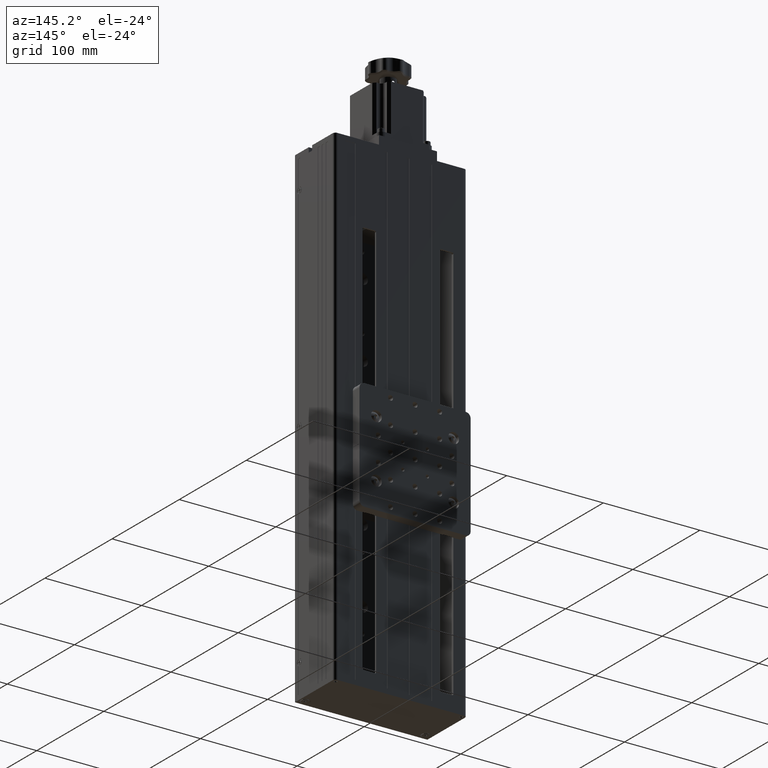
[diagram: clean part render]
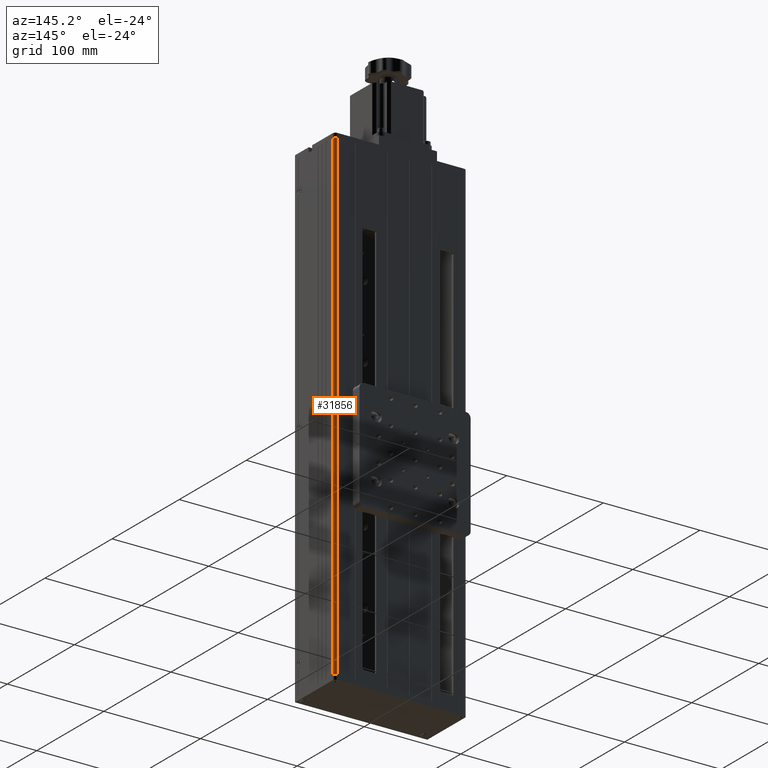
[diagram: same view with one face highlighted and labeled with its STEP entity id]
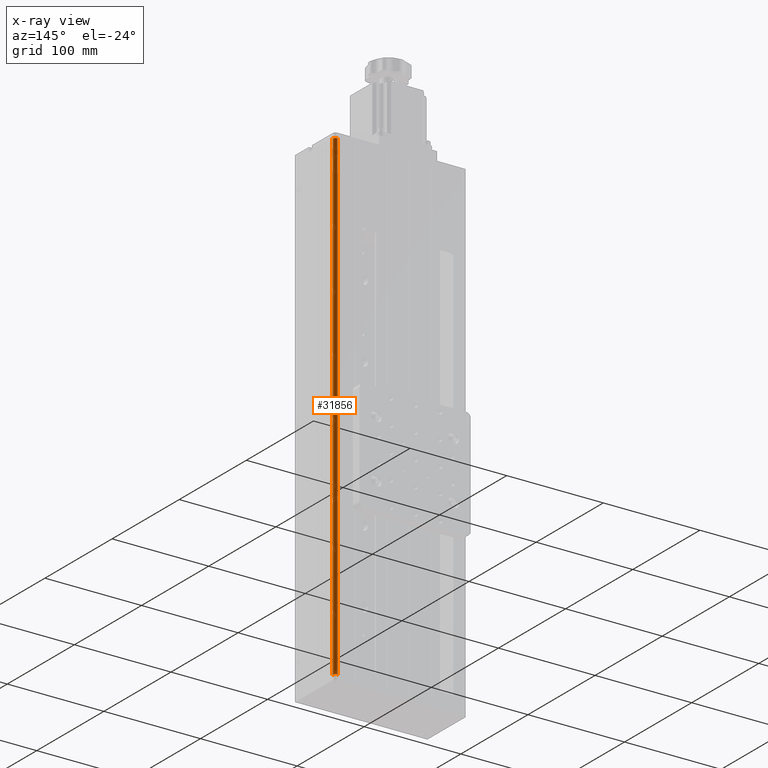
[diagram: x-ray of the same camera — body ghosted, the highlighted face saturated]
A machine part, auxiliary view. The second image highlights one B-rep face of the part: STEP entity #31856.
The next image is the same camera in x-ray: the body ghosted, the highlighted face saturated — about 0% of this face is hidden behind the body in this view.
In plain terms, the highlighted cylindrical surface (edge-blend (fillet) strip) has radius 3 mm, axis along (-0, -0, -1).
Its self-contained STEP definition (entity closure, byte-faithful):
#1558 = VERTEX_POINT ( 'NONE', #4806 ) ;
#4066 = CYLINDRICAL_SURFACE ( 'NONE', #6900, 3.000000000000002700 ) ;
#4219 = AXIS2_PLACEMENT_3D ( 'NONE', #28100, #8530, #31322 ) ;
#4436 = DIRECTION ( 'NONE',  ( -0.0000000000000000000, -0.0000000000000000000, -1.000000000000000000 ) ) ;
#4745 = VERTEX_POINT ( 'NONE', #20066 ) ;
#4806 = CARTESIAN_POINT ( 'NONE',  ( 62.38919164396001800, 50.08234937935211000, 249.5000000000000000 ) ) ;
#6797 = EDGE_CURVE ( 'NONE', #1558, #19803, #9597, .T. ) ;
#6807 = DIRECTION ( 'NONE',  ( 0.0000000000000000000, 0.0000000000000000000, 1.000000000000000000 ) ) ;
#6900 = AXIS2_PLACEMENT_3D ( 'NONE', #26088, #29232, #26219 ) ;
#8530 = DIRECTION ( 'NONE',  ( 0.0000000000000000000, 0.0000000000000000000, 1.000000000000000000 ) ) ;
#9261 = DIRECTION ( 'NONE',  ( -0.0000000000000000000, -0.0000000000000000000, -1.000000000000000000 ) ) ;
#9597 = LINE ( 'NONE', #30650, #18302 ) ;
#14589 = EDGE_CURVE ( 'NONE', #26151, #1558, #16656, .T. ) ;
#15964 = EDGE_CURVE ( 'NONE', #26151, #4745, #18036, .T. ) ;
#16656 = CIRCLE ( 'NONE', #34226, 3.000000000000002700 ) ;
#17437 = ORIENTED_EDGE ( 'NONE', *, *, #6797, .F. ) ;
#17998 = EDGE_LOOP ( 'NONE', ( #21569, #17437, #40000, #29272 ) ) ;
#18036 = LINE ( 'NONE', #35346, #25644 ) ;
#18302 = VECTOR ( 'NONE', #4436, 1000.000000000000000 ) ;
#19803 = VERTEX_POINT ( 'NONE', #40099 ) ;
#20066 = CARTESIAN_POINT ( 'NONE',  ( 65.38919164396001800, 47.08234937935211000, -249.5000000000000000 ) ) ;
#21569 = ORIENTED_EDGE ( 'NONE', *, *, #41693, .T. ) ;
#22100 = CARTESIAN_POINT ( 'NONE',  ( 65.38919164396001800, 47.08234937935211000, 249.5000000000000000 ) ) ;
#25531 = FACE_OUTER_BOUND ( 'NONE', #17998, .T. ) ;
#25644 = VECTOR ( 'NONE', #9261, 1000.000000000000000 ) ;
#26088 = CARTESIAN_POINT ( 'NONE',  ( 62.38919164396001800, 47.08234937935211000, 249.5000000000000000 ) ) ;
#26151 = VERTEX_POINT ( 'NONE', #22100 ) ;
#26219 = DIRECTION ( 'NONE',  ( -1.000000000000000000, 0.0000000000000000000, 0.0000000000000000000 ) ) ;
#26360 = CARTESIAN_POINT ( 'NONE',  ( 62.38919164396001800, 47.08234937935211000, 249.5000000000000000 ) ) ;
#28100 = CARTESIAN_POINT ( 'NONE',  ( 62.38919164396001800, 47.08234937935211000, -249.5000000000000000 ) ) ;
#29232 = DIRECTION ( 'NONE',  ( -0.0000000000000000000, -0.0000000000000000000, -1.000000000000000000 ) ) ;
#29272 = ORIENTED_EDGE ( 'NONE', *, *, #15964, .T. ) ;
#29635 = DIRECTION ( 'NONE',  ( 1.000000000000000000, 0.0000000000000000000, 0.0000000000000000000 ) ) ;
#30650 = CARTESIAN_POINT ( 'NONE',  ( 62.38919164396001800, 50.08234937935211000, 249.5000000000000000 ) ) ;
#31322 = DIRECTION ( 'NONE',  ( 1.000000000000000000, 0.0000000000000000000, 0.0000000000000000000 ) ) ;
#31856 = ADVANCED_FACE ( 'NONE', ( #25531 ), #4066, .T. ) ;
#33166 = CIRCLE ( 'NONE', #4219, 3.000000000000002700 ) ;
#34226 = AXIS2_PLACEMENT_3D ( 'NONE', #26360, #6807, #29635 ) ;
#35346 = CARTESIAN_POINT ( 'NONE',  ( 65.38919164396001800, 47.08234937935211000, 249.5000000000000000 ) ) ;
#40000 = ORIENTED_EDGE ( 'NONE', *, *, #14589, .F. ) ;
#40099 = CARTESIAN_POINT ( 'NONE',  ( 62.38919164396001800, 50.08234937935211000, -249.5000000000000000 ) ) ;
#41693 = EDGE_CURVE ( 'NONE', #4745, #19803, #33166, .T. ) ;